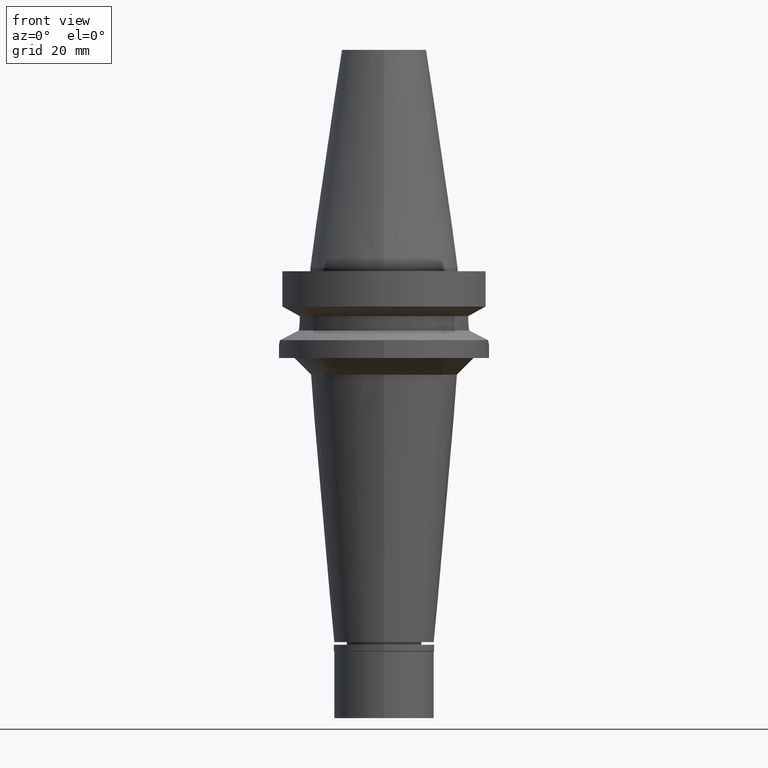
[diagram: clean part render]
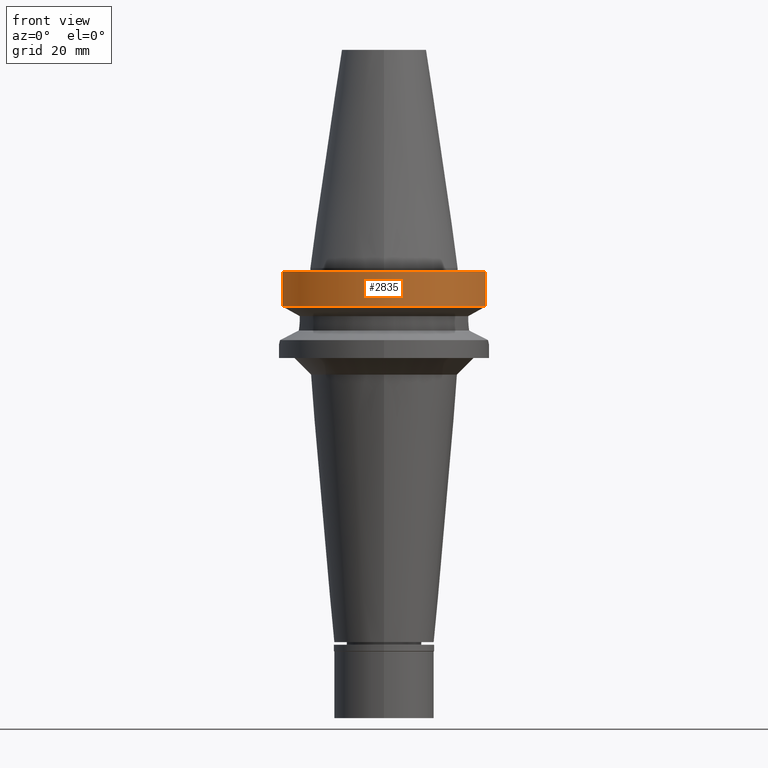
[diagram: same view with one face highlighted and labeled with its STEP entity id]
A machine part, front view. The second image highlights one B-rep face of the part: STEP entity #2835.
In plain terms, the highlighted cylindrical surface (partial cylindrical patch) has radius 31.5 mm, axis along (0, 0, -1).
Its self-contained STEP definition (entity closure, byte-faithful):
#104 = LINE ( 'NONE', #1840, #1146 ) ;
#124 = CIRCLE ( 'NONE', #737, 31.50000000000000000 ) ;
#188 = CARTESIAN_POINT ( 'NONE',  ( 30.45402272279000044, -8.049999999999000622, -11.56550565266999975 ) ) ;
#213 = DIRECTION ( 'NONE',  ( 0.0000000000000000000, -1.000000000000000000, 0.0000000000000000000 ) ) ;
#264 = FACE_OUTER_BOUND ( 'NONE', #1218, .T. ) ;
#557 = EDGE_CURVE ( 'NONE', #847, #1064, #1397, .T. ) ;
#737 = AXIS2_PLACEMENT_3D ( 'NONE', #2593, #1669, #1438 ) ;
#738 = DIRECTION ( 'NONE',  ( 0.0000000000000000000, -1.000000000000000000, 0.0000000000000000000 ) ) ;
#837 = EDGE_CURVE ( 'NONE', #847, #1124, #104, .T. ) ;
#847 = VERTEX_POINT ( 'NONE', #2769 ) ;
#894 = AXIS2_PLACEMENT_3D ( 'NONE', #2322, #2089, #213 ) ;
#946 = CARTESIAN_POINT ( 'NONE',  ( -30.45402272279000044, -8.050000000000000711, -1.000000000000000000 ) ) ;
#1037 = CARTESIAN_POINT ( 'NONE',  ( 30.45402272279000044, -8.050000000000000711, -1.000000000000000000 ) ) ;
#1049 = EDGE_CURVE ( 'NONE', #2601, #1124, #124, .T. ) ;
#1064 = VERTEX_POINT ( 'NONE', #188 ) ;
#1124 = VERTEX_POINT ( 'NONE', #946 ) ;
#1146 = VECTOR ( 'NONE', #2577, 1000.000000000000114 ) ;
#1182 = DIRECTION ( 'NONE',  ( 0.0000000000000000000, 0.0000000000000000000, -1.000000000000000000 ) ) ;
#1192 = EDGE_CURVE ( 'NONE', #2601, #1064, #2977, .T. ) ;
#1218 = EDGE_LOOP ( 'NONE', ( #1600, #1701, #2582, #3060 ) ) ;
#1397 = CIRCLE ( 'NONE', #894, 31.50000000000000000 ) ;
#1438 = DIRECTION ( 'NONE',  ( 0.0000000000000000000, -1.000000000000000000, 0.0000000000000000000 ) ) ;
#1472 = DIRECTION ( 'NONE',  ( -1.036708974654017625E-07, -3.921977101065068055E-07, -0.9999999999999177325 ) ) ;
#1578 = CARTESIAN_POINT ( 'NONE',  ( 30.45402272279000044, -8.050000000000000711, -1.000000000000000000 ) ) ;
#1600 = ORIENTED_EDGE ( 'NONE', *, *, #837, .F. ) ;
#1667 = AXIS2_PLACEMENT_3D ( 'NONE', #2912, #1182, #738 ) ;
#1669 = DIRECTION ( 'NONE',  ( 0.0000000000000000000, 0.0000000000000000000, -1.000000000000000000 ) ) ;
#1701 = ORIENTED_EDGE ( 'NONE', *, *, #557, .T. ) ;
#1840 = CARTESIAN_POINT ( 'NONE',  ( -30.45402291359999936, -8.049999278126000135, -11.56551215442999947 ) ) ;
#2089 = DIRECTION ( 'NONE',  ( 0.0000000000000000000, 0.0000000000000000000, 1.000000000000000000 ) ) ;
#2302 = VECTOR ( 'NONE', #1472, 1000.000000000000114 ) ;
#2322 = CARTESIAN_POINT ( 'NONE',  ( 0.0000000000000000000, 1.065333950388000029E-14, -11.56550565266999975 ) ) ;
#2577 = DIRECTION ( 'NONE',  ( 1.806009824915990542E-08, -6.832354588724960913E-08, 0.9999999999999974465 ) ) ;
#2582 = ORIENTED_EDGE ( 'NONE', *, *, #1192, .F. ) ;
#2593 = CARTESIAN_POINT ( 'NONE',  ( 0.0000000000000000000, 2.144172848286999836E-14, -1.000000000000000000 ) ) ;
#2601 = VERTEX_POINT ( 'NONE', #1578 ) ;
#2769 = CARTESIAN_POINT ( 'NONE',  ( -30.45402291359999936, -8.049999278126000135, -11.56551215442999947 ) ) ;
#2835 = ADVANCED_FACE ( 'NONE', ( #264 ), #3116, .T. ) ;
#2912 = CARTESIAN_POINT ( 'NONE',  ( 0.0000000000000000000, 2.144172848286999836E-14, 75.08499999999999375 ) ) ;
#2977 = LINE ( 'NONE', #1037, #2302 ) ;
#3060 = ORIENTED_EDGE ( 'NONE', *, *, #1049, .T. ) ;
#3116 = CYLINDRICAL_SURFACE ( 'NONE', #1667, 31.50000000000000000 ) ;